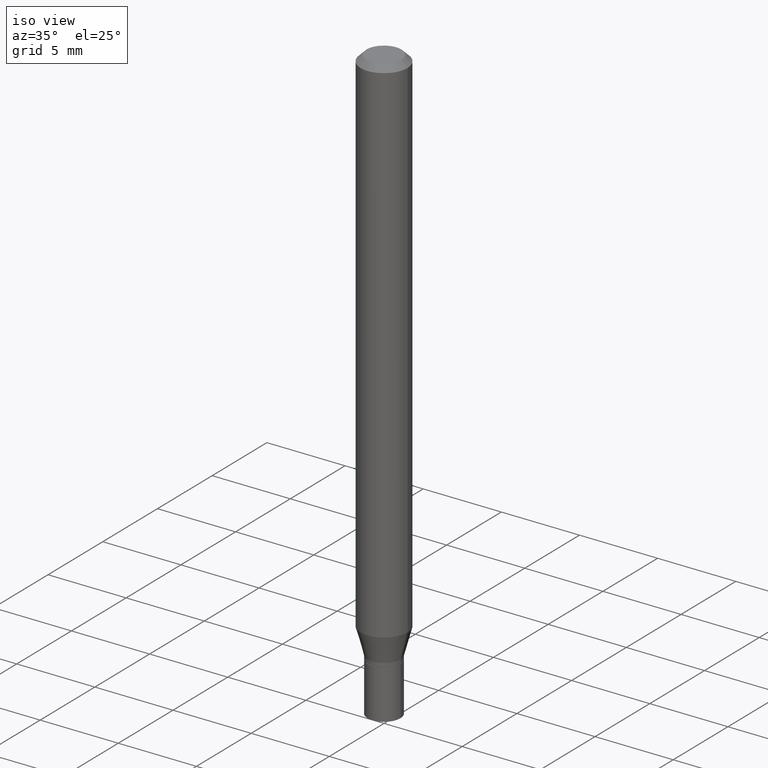
[diagram: clean part render]
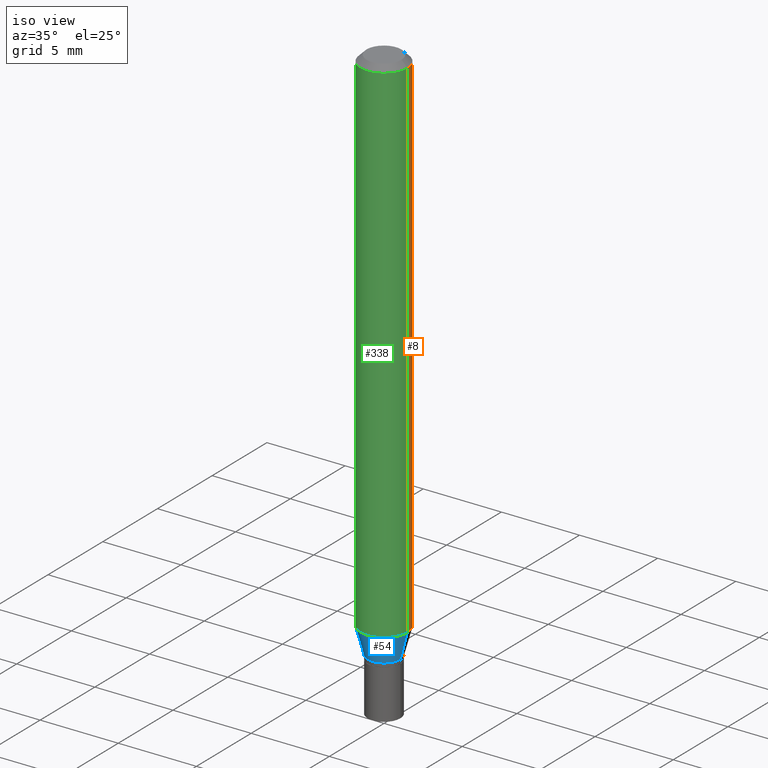
[diagram: same view with three faces highlighted in distinct colors, each labeled with its STEP entity id]
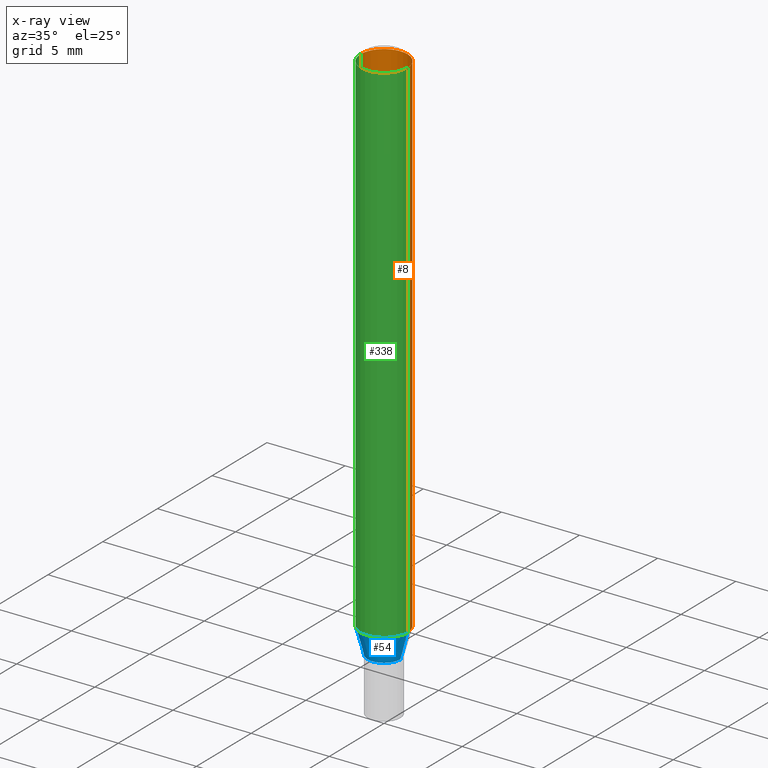
[diagram: x-ray of the same camera — body ghosted, the three highlighted faces saturated]
A machine part, iso view with three faces highlighted in distinct colors.
The next image is the same camera in x-ray (body ghosted, the three faces saturated) — at least one of them is partly hidden behind the body in this view.
Their STEP definitions:

[orange] entity #8 — the highlighted cylindrical surface (edge-blend (fillet) strip) has radius 1.4999 mm, axis along (-0, 0, 1).
#8 = ADVANCED_FACE ( 'NONE', ( #174 ), #356, .T. ) ;
#9 = CARTESIAN_POINT ( 'NONE',  ( -0.05904999999999999832, 4.195754854663391478E-16, -2.904631170795521892E-30 ) ) ;
#16 = DIRECTION ( 'NONE',  ( -2.445468806185136877E-29, 3.491481338843145188E-15, 1.000000000000000000 ) ) ;
#22 = CARTESIAN_POINT ( 'NONE',  ( 0.05904999999999999832, -4.950720479063956605E-15, -1.299842700706030918 ) ) ;
#31 = DIRECTION ( 'NONE',  ( 1.000000000000000000, -6.982962677686266711E-15, 4.876176775795936353E-29 ) ) ;
#37 = CARTESIAN_POINT ( 'NONE',  ( 0.000000000000000000, 0.000000000000000000, 0.000000000000000000 ) ) ;
#38 = CIRCLE ( 'NONE', #93, 0.05904999999999999832 ) ;
#39 = VERTEX_POINT ( 'NONE', #77 ) ;
#49 = DIRECTION ( 'NONE',  ( -2.445468806185136877E-29, 3.491481338843145188E-15, 1.000000000000000000 ) ) ;
#52 = DIRECTION ( 'NONE',  ( -2.445468806185136597E-29, 3.491481338843145583E-15, 1.000000000000000000 ) ) ;
#77 = CARTESIAN_POINT ( 'NONE',  ( -0.05904999999999999832, -4.118801047480243769E-15, -1.299842700706030918 ) ) ;
#81 = DIRECTION ( 'NONE',  ( 1.000000000000000000, -6.982962677686273021E-15, 0.000000000000000000 ) ) ;
#93 = AXIS2_PLACEMENT_3D ( 'NONE', #330, #361, #81 ) ;
#100 = AXIS2_PLACEMENT_3D ( 'NONE', #378, #52, #377 ) ;
#103 = EDGE_LOOP ( 'NONE', ( #322, #219, #316, #197 ) ) ;
#107 = CIRCLE ( 'NONE', #100, 0.05904999999999999832 ) ;
#110 = EDGE_CURVE ( 'NONE', #309, #39, #38, .T. ) ;
#114 = LINE ( 'NONE', #228, #217 ) ;
#115 = LINE ( 'NONE', #9, #298 ) ;
#119 = EDGE_CURVE ( 'NONE', #39, #279, #115, .T. ) ;
#155 = EDGE_CURVE ( 'NONE', #309, #211, #114, .T. ) ;
#156 = CARTESIAN_POINT ( 'NONE',  ( 0.05904999999999999832, -4.647161662000212105E-16, -0.01499999999999999944 ) ) ;
#174 = FACE_OUTER_BOUND ( 'NONE', #103, .T. ) ;
#182 = AXIS2_PLACEMENT_3D ( 'NONE', #37, #289, #31 ) ;
#197 = ORIENTED_EDGE ( 'NONE', *, *, #155, .F. ) ;
#211 = VERTEX_POINT ( 'NONE', #156 ) ;
#217 = VECTOR ( 'NONE', #16, 39.37007874015748143 ) ;
#219 = ORIENTED_EDGE ( 'NONE', *, *, #119, .T. ) ;
#228 = CARTESIAN_POINT ( 'NONE',  ( 0.05904999999999999832, -4.123439461173740327E-16, 2.879382386107500220E-30 ) ) ;
#279 = VERTEX_POINT ( 'NONE', #311 ) ;
#280 = EDGE_CURVE ( 'NONE', #211, #279, #107, .T. ) ;
#289 = DIRECTION ( 'NONE',  ( -2.445468806185136597E-29, 3.491481338843145583E-15, 1.000000000000000000 ) ) ;
#298 = VECTOR ( 'NONE', #49, 39.37007874015748143 ) ;
#309 = VERTEX_POINT ( 'NONE', #22 ) ;
#311 = CARTESIAN_POINT ( 'NONE',  ( -0.05904999999999999832, -1.875798891048276269E-15, -0.01499999999999999944 ) ) ;
#316 = ORIENTED_EDGE ( 'NONE', *, *, #280, .F. ) ;
#322 = ORIENTED_EDGE ( 'NONE', *, *, #110, .T. ) ;
#330 = CARTESIAN_POINT ( 'NONE',  ( 3.178724777524041310E-29, -4.538376532946583262E-15, -1.299842700706030918 ) ) ;
#356 = CYLINDRICAL_SURFACE ( 'NONE', #182, 0.05904999999999999832 ) ;
#361 = DIRECTION ( 'NONE',  ( -2.445468806185136597E-29, 3.491481338843145583E-15, 1.000000000000000000 ) ) ;
#377 = DIRECTION ( 'NONE',  ( 1.000000000000000000, -6.982962677686266711E-15, 0.000000000000000000 ) ) ;
#378 = CARTESIAN_POINT ( 'NONE',  ( 3.668203209277705088E-31, -5.237222008264718399E-17, -0.01499999999999999944 ) ) ;

[blue] entity #54 — the highlighted conical surface has half-angle 15 deg.
#3 = LINE ( 'NONE', #366, #442 ) ;
#21 = AXIS2_PLACEMENT_3D ( 'NONE', #437, #222, #181 ) ;
#22 = CARTESIAN_POINT ( 'NONE',  ( 0.05904999999999999832, -4.950720479063956605E-15, -1.299842700706030918 ) ) ;
#28 = ORIENTED_EDGE ( 'NONE', *, *, #172, .T. ) ;
#34 = VERTEX_POINT ( 'NONE', #152 ) ;
#39 = VERTEX_POINT ( 'NONE', #77 ) ;
#54 = ADVANCED_FACE ( 'NONE', ( #295 ), #285, .T. ) ;
#55 = DIRECTION ( 'NONE',  ( -2.445468806185136597E-29, 3.491481338843145583E-15, 1.000000000000000000 ) ) ;
#59 = ORIENTED_EDGE ( 'NONE', *, *, #359, .F. ) ;
#62 = VERTEX_POINT ( 'NONE', #261 ) ;
#77 = CARTESIAN_POINT ( 'NONE',  ( -0.05904999999999999832, -4.118801047480243769E-15, -1.299842700706030918 ) ) ;
#87 = VECTOR ( 'NONE', #169, 39.37007874015748854 ) ;
#89 = EDGE_CURVE ( 'NONE', #34, #309, #3, .T. ) ;
#90 = CARTESIAN_POINT ( 'NONE',  ( 3.340265842368278094E-29, -4.769014360725852776E-15, -1.365900000000000114 ) ) ;
#101 = CARTESIAN_POINT ( 'NONE',  ( -0.04134999999999992154, -4.475204939489051364E-15, -1.365900000000000114 ) ) ;
#122 = DIRECTION ( 'NONE',  ( -2.445468806185136597E-29, 3.491481338843145583E-15, 1.000000000000000000 ) ) ;
#152 = CARTESIAN_POINT ( 'NONE',  ( 0.04134999999999992154, -5.057759867448178932E-15, -1.365900000000000114 ) ) ;
#167 = ORIENTED_EDGE ( 'NONE', *, *, #307, .F. ) ;
#169 = DIRECTION ( 'NONE',  ( -0.2588190451025217387, 5.211531920934551042E-15, 0.9659258262890679791 ) ) ;
#172 = EDGE_CURVE ( 'NONE', #62, #34, #350, .T. ) ;
#181 = DIRECTION ( 'NONE',  ( 1.000000000000000000, -6.982962677686262766E-15, 0.000000000000000000 ) ) ;
#198 = CARTESIAN_POINT ( 'NONE',  ( 3.178724777524041310E-29, -4.538376532946583262E-15, -1.299842700706030918 ) ) ;
#218 = CIRCLE ( 'NONE', #232, 0.05904999999999999832 ) ;
#222 = DIRECTION ( 'NONE',  ( -2.445468806185136597E-29, 3.491481338843145583E-15, 1.000000000000000000 ) ) ;
#232 = AXIS2_PLACEMENT_3D ( 'NONE', #198, #55, #453 ) ;
#241 = EDGE_LOOP ( 'NONE', ( #59, #28, #249, #167 ) ) ;
#249 = ORIENTED_EDGE ( 'NONE', *, *, #89, .T. ) ;
#259 = DIRECTION ( 'NONE',  ( 0.2588190451025217387, 1.565188264969619207E-15, 0.9659258262890679791 ) ) ;
#261 = CARTESIAN_POINT ( 'NONE',  ( -0.04134999999999992154, -4.297002993484647567E-15, -1.365900000000000114 ) ) ;
#285 = CONICAL_SURFACE ( 'NONE', #21, 0.04134999999999992154, 0.2617993877991504625 ) ;
#295 = FACE_OUTER_BOUND ( 'NONE', #241, .T. ) ;
#307 = EDGE_CURVE ( 'NONE', #39, #309, #218, .T. ) ;
#309 = VERTEX_POINT ( 'NONE', #22 ) ;
#317 = LINE ( 'NONE', #101, #87 ) ;
#339 = DIRECTION ( 'NONE',  ( 1.000000000000000000, -6.982962677686262766E-15, 0.000000000000000000 ) ) ;
#350 = CIRCLE ( 'NONE', #392, 0.04134999999999992154 ) ;
#359 = EDGE_CURVE ( 'NONE', #62, #39, #317, .T. ) ;
#366 = CARTESIAN_POINT ( 'NONE',  ( 0.04134999999999992154, -5.057759867448178932E-15, -1.365900000000000114 ) ) ;
#392 = AXIS2_PLACEMENT_3D ( 'NONE', #90, #122, #339 ) ;
#437 = CARTESIAN_POINT ( 'NONE',  ( 3.340265842368278094E-29, -4.769014360725852776E-15, -1.365900000000000114 ) ) ;
#442 = VECTOR ( 'NONE', #259, 39.37007874015748854 ) ;
#453 = DIRECTION ( 'NONE',  ( 1.000000000000000000, -6.982962677686273021E-15, 0.000000000000000000 ) ) ;

[green] entity #338 — the highlighted cylindrical surface (edge-blend (fillet) strip) has radius 1.4999 mm, axis along (-0, 0, 1).
#4 = CIRCLE ( 'NONE', #409, 0.05904999999999999832 ) ;
#9 = CARTESIAN_POINT ( 'NONE',  ( -0.05904999999999999832, 4.195754854663391478E-16, -2.904631170795521892E-30 ) ) ;
#16 = DIRECTION ( 'NONE',  ( -2.445468806185136877E-29, 3.491481338843145188E-15, 1.000000000000000000 ) ) ;
#22 = CARTESIAN_POINT ( 'NONE',  ( 0.05904999999999999832, -4.950720479063956605E-15, -1.299842700706030918 ) ) ;
#39 = VERTEX_POINT ( 'NONE', #77 ) ;
#49 = DIRECTION ( 'NONE',  ( -2.445468806185136877E-29, 3.491481338843145188E-15, 1.000000000000000000 ) ) ;
#55 = DIRECTION ( 'NONE',  ( -2.445468806185136597E-29, 3.491481338843145583E-15, 1.000000000000000000 ) ) ;
#63 = CARTESIAN_POINT ( 'NONE',  ( 3.668203209277705088E-31, -5.237222008264718399E-17, -0.01499999999999999944 ) ) ;
#77 = CARTESIAN_POINT ( 'NONE',  ( -0.05904999999999999832, -4.118801047480243769E-15, -1.299842700706030918 ) ) ;
#114 = LINE ( 'NONE', #228, #217 ) ;
#115 = LINE ( 'NONE', #9, #298 ) ;
#119 = EDGE_CURVE ( 'NONE', #39, #279, #115, .T. ) ;
#132 = DIRECTION ( 'NONE',  ( -2.445468806185136597E-29, 3.491481338843145583E-15, 1.000000000000000000 ) ) ;
#133 = ORIENTED_EDGE ( 'NONE', *, *, #155, .T. ) ;
#155 = EDGE_CURVE ( 'NONE', #309, #211, #114, .T. ) ;
#156 = CARTESIAN_POINT ( 'NONE',  ( 0.05904999999999999832, -4.647161662000212105E-16, -0.01499999999999999944 ) ) ;
#198 = CARTESIAN_POINT ( 'NONE',  ( 3.178724777524041310E-29, -4.538376532946583262E-15, -1.299842700706030918 ) ) ;
#200 = DIRECTION ( 'NONE',  ( -2.445468806185136597E-29, 3.491481338843145583E-15, 1.000000000000000000 ) ) ;
#201 = ORIENTED_EDGE ( 'NONE', *, *, #439, .F. ) ;
#211 = VERTEX_POINT ( 'NONE', #156 ) ;
#217 = VECTOR ( 'NONE', #16, 39.37007874015748143 ) ;
#218 = CIRCLE ( 'NONE', #232, 0.05904999999999999832 ) ;
#228 = CARTESIAN_POINT ( 'NONE',  ( 0.05904999999999999832, -4.123439461173740327E-16, 2.879382386107500220E-30 ) ) ;
#232 = AXIS2_PLACEMENT_3D ( 'NONE', #198, #55, #453 ) ;
#246 = ORIENTED_EDGE ( 'NONE', *, *, #307, .T. ) ;
#267 = CARTESIAN_POINT ( 'NONE',  ( 0.000000000000000000, 0.000000000000000000, 0.000000000000000000 ) ) ;
#271 = DIRECTION ( 'NONE',  ( 1.000000000000000000, -6.982962677686266711E-15, 4.876176775795936353E-29 ) ) ;
#279 = VERTEX_POINT ( 'NONE', #311 ) ;
#283 = DIRECTION ( 'NONE',  ( 1.000000000000000000, -6.982962677686266711E-15, 0.000000000000000000 ) ) ;
#288 = EDGE_LOOP ( 'NONE', ( #391, #246, #133, #201 ) ) ;
#298 = VECTOR ( 'NONE', #49, 39.37007874015748143 ) ;
#305 = CYLINDRICAL_SURFACE ( 'NONE', #384, 0.05904999999999999832 ) ;
#307 = EDGE_CURVE ( 'NONE', #39, #309, #218, .T. ) ;
#309 = VERTEX_POINT ( 'NONE', #22 ) ;
#311 = CARTESIAN_POINT ( 'NONE',  ( -0.05904999999999999832, -1.875798891048276269E-15, -0.01499999999999999944 ) ) ;
#338 = ADVANCED_FACE ( 'NONE', ( #373 ), #305, .T. ) ;
#373 = FACE_OUTER_BOUND ( 'NONE', #288, .T. ) ;
#384 = AXIS2_PLACEMENT_3D ( 'NONE', #267, #200, #271 ) ;
#391 = ORIENTED_EDGE ( 'NONE', *, *, #119, .F. ) ;
#409 = AXIS2_PLACEMENT_3D ( 'NONE', #63, #132, #283 ) ;
#439 = EDGE_CURVE ( 'NONE', #279, #211, #4, .T. ) ;
#453 = DIRECTION ( 'NONE',  ( 1.000000000000000000, -6.982962677686273021E-15, 0.000000000000000000 ) ) ;